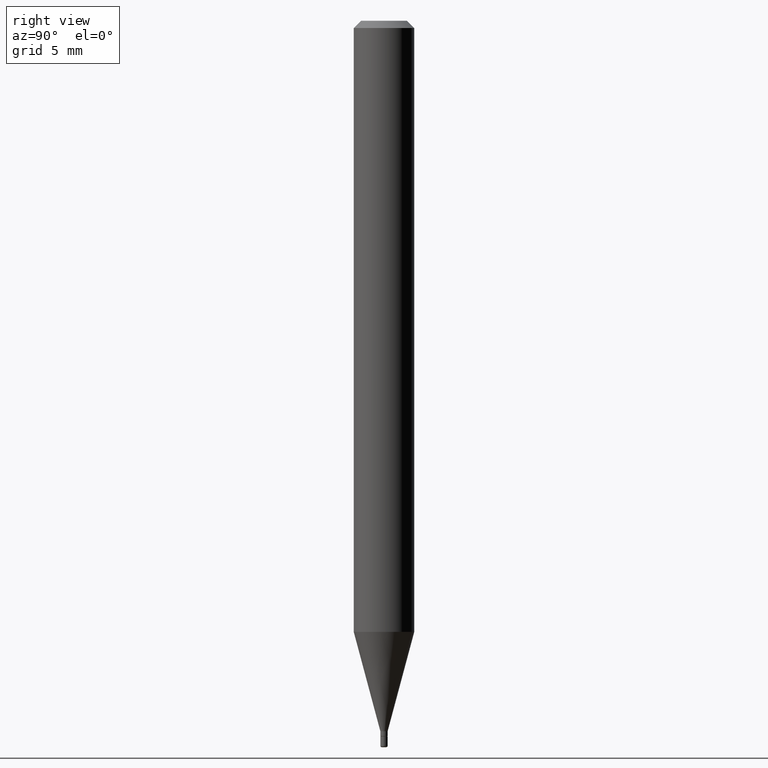
[diagram: clean part render]
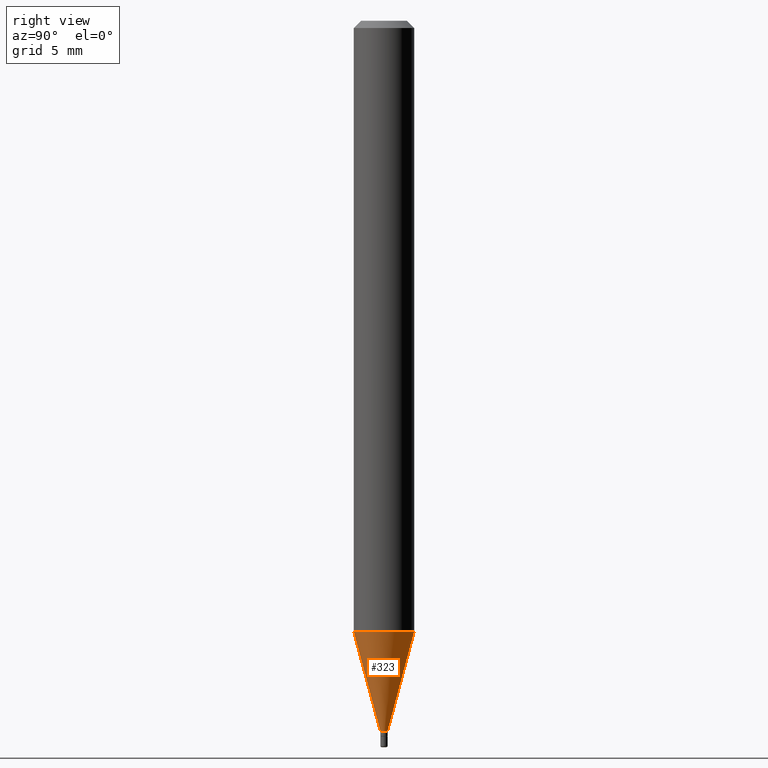
[diagram: same view with one face highlighted and labeled with its STEP entity id]
A machine part, right view. The second image highlights one B-rep face of the part: STEP entity #323.
In plain terms, the highlighted conical surface has half-angle 15 deg.
Its self-contained STEP definition (entity closure, byte-faithful):
#44 = CIRCLE ( 'NONE', #341, 0.06250000000000000000 ) ;
#50 = EDGE_CURVE ( 'NONE', #203, #275, #484, .T. ) ;
#55 = CARTESIAN_POINT ( 'NONE',  ( 3.087338282629810995E-29, -4.402755200976571001E-15, -1.261737205583712162 ) ) ;
#65 = VERTEX_POINT ( 'NONE', #398 ) ;
#71 = DIRECTION ( 'NONE',  ( 1.839019923739595582E-15, 0.2588190451025242922, 0.9659258262890673130 ) ) ;
#76 = VECTOR ( 'NONE', #71, 39.37007874015748854 ) ;
#77 = CARTESIAN_POINT ( 'NONE',  ( 3.589594759173836037E-29, -5.119007231656140141E-15, -1.467000000000000304 ) ) ;
#84 = ORIENTED_EDGE ( 'NONE', *, *, #232, .F. ) ;
#87 = DIRECTION ( 'NONE',  ( -6.982962677686265922E-15, -1.000000000000000000, 0.000000000000000000 ) ) ;
#115 = CARTESIAN_POINT ( 'NONE',  ( 5.329070518204347910E-17, 0.007499999999994891829, -1.467000000000000304 ) ) ;
#123 = CARTESIAN_POINT ( 'NONE',  ( 2.486899575160686153E-16, 0.007499999999994892697, -1.467000000000000304 ) ) ;
#132 = EDGE_CURVE ( 'NONE', #163, #65, #320, .T. ) ;
#163 = VERTEX_POINT ( 'NONE', #123 ) ;
#165 = CONICAL_SURFACE ( 'NONE', #364, 0.007500000000000010998, 0.2617993877991495744 ) ;
#183 = ORIENTED_EDGE ( 'NONE', *, *, #187, .T. ) ;
#186 = VECTOR ( 'NONE', #362, 39.37007874015748854 ) ;
#187 = EDGE_CURVE ( 'NONE', #203, #163, #456, .T. ) ;
#203 = VERTEX_POINT ( 'NONE', #250 ) ;
#232 = EDGE_CURVE ( 'NONE', #275, #65, #44, .T. ) ;
#240 = DIRECTION ( 'NONE',  ( -2.446894859695865878E-29, 3.489439149049856002E-15, 1.000000000000000000 ) ) ;
#250 = CARTESIAN_POINT ( 'NONE',  ( -5.237222008261117372E-17, -0.007500000000005129300, -1.467000000000000304 ) ) ;
#271 = EDGE_LOOP ( 'NONE', ( #183, #321, #84, #343 ) ) ;
#275 = VERTEX_POINT ( 'NONE', #337 ) ;
#286 = CARTESIAN_POINT ( 'NONE',  ( -5.237222008261117372E-17, -0.007500000000005129300, -1.467000000000000304 ) ) ;
#293 = CARTESIAN_POINT ( 'NONE',  ( 3.589594759173836037E-29, -5.119007231656140141E-15, -1.467000000000000304 ) ) ;
#294 = DIRECTION ( 'NONE',  ( -2.446894859695865878E-29, 3.489439149049856002E-15, 1.000000000000000000 ) ) ;
#320 = LINE ( 'NONE', #115, #76 ) ;
#321 = ORIENTED_EDGE ( 'NONE', *, *, #132, .T. ) ;
#323 = ADVANCED_FACE ( 'NONE', ( #334 ), #165, .T. ) ;
#334 = FACE_OUTER_BOUND ( 'NONE', #271, .T. ) ;
#337 = CARTESIAN_POINT ( 'NONE',  ( -4.364351673553608052E-16, -0.06250000000000439926, -1.261737205583711940 ) ) ;
#341 = AXIS2_PLACEMENT_3D ( 'NONE', #55, #497, #413 ) ;
#343 = ORIENTED_EDGE ( 'NONE', *, *, #50, .F. ) ;
#355 = AXIS2_PLACEMENT_3D ( 'NONE', #77, #240, #87 ) ;
#362 = DIRECTION ( 'NONE',  ( -1.807323732225325406E-15, -0.2588190451025175198, 0.9659258262890690894 ) ) ;
#364 = AXIS2_PLACEMENT_3D ( 'NONE', #293, #294, #495 ) ;
#398 = CARTESIAN_POINT ( 'NONE',  ( 4.440892098500932831E-16, 0.06249999999999559380, -1.261737205583712385 ) ) ;
#413 = DIRECTION ( 'NONE',  ( -6.982962677686265922E-15, -1.000000000000000000, 4.370956789862821150E-15 ) ) ;
#456 = CIRCLE ( 'NONE', #355, 0.007500000000000010998 ) ;
#484 = LINE ( 'NONE', #286, #186 ) ;
#495 = DIRECTION ( 'NONE',  ( -6.982962677686265922E-15, -1.000000000000000000, 0.000000000000000000 ) ) ;
#497 = DIRECTION ( 'NONE',  ( -2.446894859695865878E-29, 3.489439149049856002E-15, 1.000000000000000000 ) ) ;